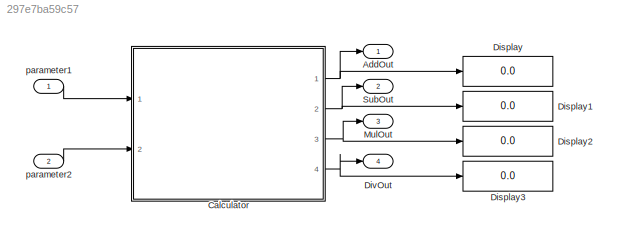
MODEL slx_297e7ba59c57
KIND model
CONFIG AbsTol = auto
CONFIG EnableMultiTasking = off
CONFIG FixedStep = auto
CONFIG MaxStep = auto
CONFIG MinStep = auto
CONFIG RelTol = 1e-3
CONFIG SampleTimeConstraint = Unconstrained
CONFIG Solver = FixedStepDiscrete
CONFIG SolverName = FixedStepDiscrete
CONFIG StartTime = 0.0
CONFIG StopTime = 10.0
BLOCK [Outport] AddOut
  IconDisplay = Port number
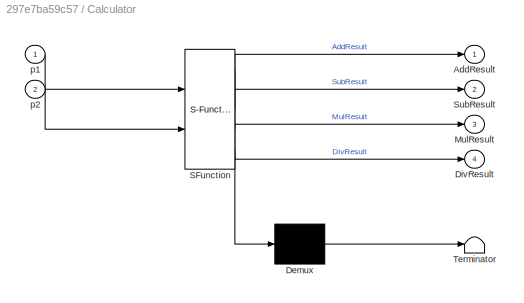
BLOCK [SubSystem] Calculator
  ErrorFcn = Stateflow.Translate.translate
  PermitHierarchicalResolution = ExplicitOnly
  Ports = [2, 4]
  RequestExecContextInheritance = off
  SFBlockType = Chart
  TreatAsAtomicUnit = on
  Variant = off
BLOCK [Demux] Calculator/ Demux 
  Outputs = 1
  Ports = [1, 1]
BLOCK [S-Function] Calculator/ SFunction 
  EnableBusSupport = on
  FunctionName = sf_sfun
  PortCounts = [2 5]
  Ports = [2, 5]
  SFcnIsStateOwnerBlock = off
  SFunctionDeploymentMode = off
  Tag = Stateflow S-Function CalculatorChart_GraphicalFunc 3
BLOCK [Terminator] Calculator/ Terminator 
BLOCK [Outport] Calculator/AddResult
  IconDisplay = Port number
BLOCK [Outport] Calculator/DivResult
  IconDisplay = Port number
  Port = 4
BLOCK [Outport] Calculator/MulResult
  IconDisplay = Port number
  Port = 3
BLOCK [Outport] Calculator/SubResult
  IconDisplay = Port number
  Port = 2
BLOCK [Inport] Calculator/p1
  IconDisplay = Port number
BLOCK [Inport] Calculator/p2
  IconDisplay = Port number
  Port = 2
BLOCK [Display] Display
  Decimation = 1
  Ports = [1]
BLOCK [Display] Display1
  Decimation = 1
  Ports = [1]
BLOCK [Display] Display2
  Decimation = 1
  Ports = [1]
BLOCK [Display] Display3
  Decimation = 1
  Ports = [1]
BLOCK [Outport] DivOut
  IconDisplay = Port number
  Port = 4
BLOCK [Outport] MulOut
  IconDisplay = Port number
  Port = 3
BLOCK [Outport] SubOut
  IconDisplay = Port number
  Port = 2
BLOCK [Inport] parameter1
  IconDisplay = Port number
BLOCK [Inport] parameter2
  IconDisplay = Port number
  Port = 2
NET Calculator:1 -> AddOut:1, Display:1
NET Calculator:2 -> Display1:1, SubOut:1
NET Calculator:3 -> Display2:1, MulOut:1
NET Calculator:4 -> Display3:1, DivOut:1
LINE parameter1:1 -> Calculator:1
LINE parameter2:1 -> Calculator:2
note: NET lines group one-source signal fan-out (src -> all destinations, sorted); 1:1 wires keep LINE
CHART Calculator states=4 transitions=7
  STATE_LABEL 'Result=Add(n1,n2)'
  STATE_LABEL '{Result = n1+n2;}'
  STATE_LABEL 'Result=Sub(n1,n2)'
  STATE_LABEL '{Result = n1-n2;}'
  STATE_LABEL 'Result=Mul(n1,n2)'
  STATE_LABEL '{Result = n1*n2;}'
  STATE_LABEL 'Result=Div(n1,n2)'
  STATE_LABEL '{Result = n1/n2;}'
